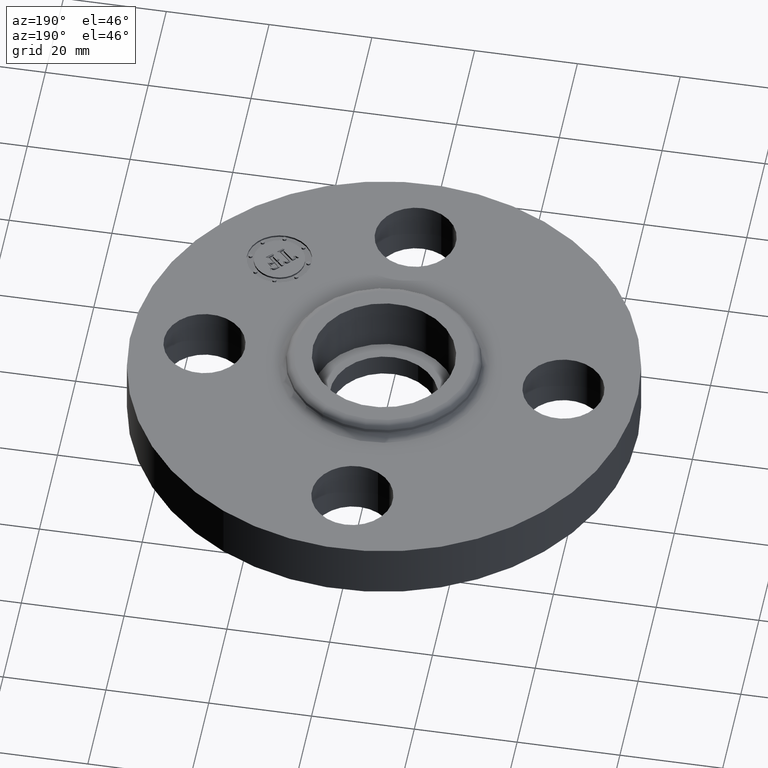
[diagram: clean part render]
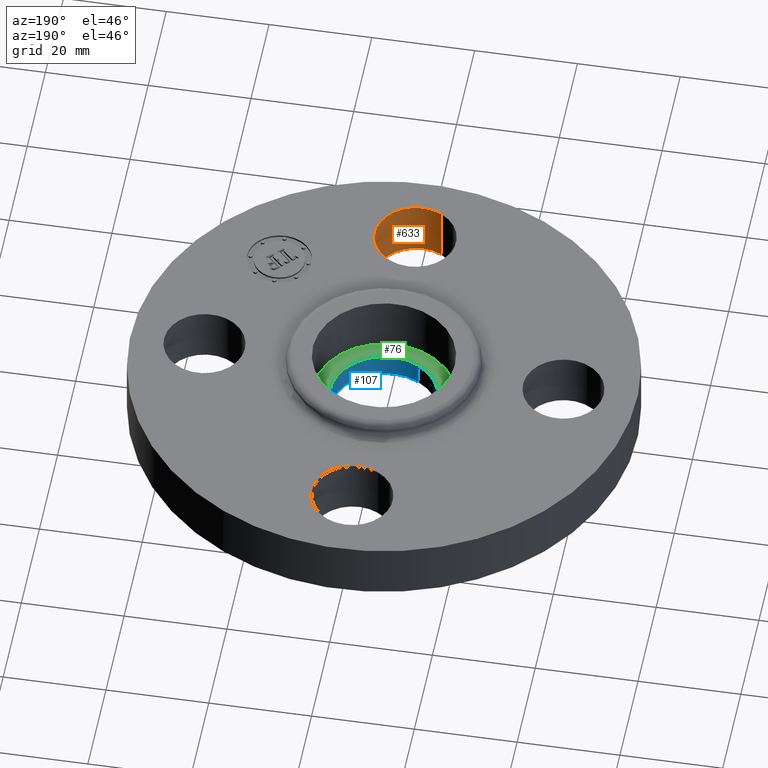
[diagram: same view with three faces highlighted in distinct colors, each labeled with its STEP entity id]
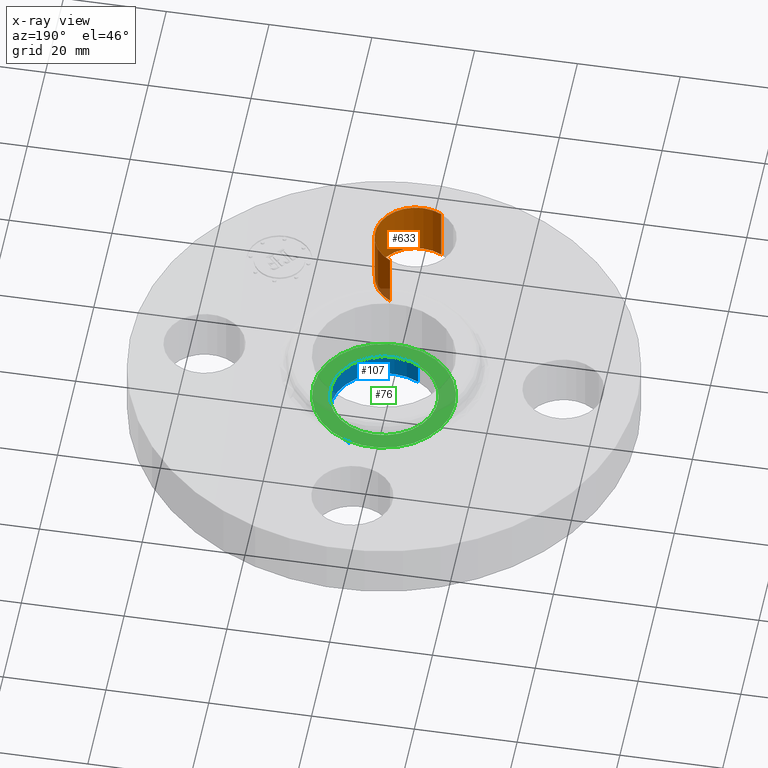
[diagram: x-ray of the same camera — body ghosted, the three highlighted faces saturated]
A machine part, auxiliary view with three faces highlighted in distinct colors.
The next image is the same camera in x-ray (body ghosted, the three faces saturated) — at least one of them is partly hidden behind the body in this view.
Their STEP definitions:

[orange] entity #633 — the highlighted cylindrical surface (partial cylindrical patch) has radius 7.874 mm, axis along (0, -0, -1).
#238=AXIS2_PLACEMENT_3D('Circle Axis2P3D',#236,#237,$) ;
#594=AXIS2_PLACEMENT_3D('Cylinder Axis2P3D',#591,#592,#593) ;
#624=AXIS2_PLACEMENT_3D('Circle Axis2P3D',#622,#623,$) ;
#236=CARTESIAN_POINT('Axis2P3D Location',(-6.99353086378E-017,-1.37500000001,0.)) ;
#240=CARTESIAN_POINT('Vertex',(0.148621916968,-1.10294940582,0.)) ;
#242=CARTESIAN_POINT('Vertex',(-0.148621916968,-1.64705059419,0.)) ;
#591=CARTESIAN_POINT('Axis2P3D Location',(-1.9554676711E-016,-1.37500000001,0.436062992128)) ;
#596=CARTESIAN_POINT('Line Origine',(-0.148621916968,-1.64705059419,0.220000000001)) ;
#600=CARTESIAN_POINT('Vertex',(-0.148621916968,-1.64705059419,0.440000000002)) ;
#603=CARTESIAN_POINT('Line Origine',(0.148621916968,-1.10294940582,0.220000000001)) ;
#607=CARTESIAN_POINT('Vertex',(0.148621916968,-1.10294940582,0.440000000002)) ;
#622=CARTESIAN_POINT('Axis2P3D Location',(-1.9554676711E-016,-1.37500000001,0.440000000002)) ;
#237=DIRECTION('Axis2P3D Direction',(0.,0.,-0.0393700787402)) ;
#592=DIRECTION('Axis2P3D Direction',(0.,-0.,-0.0393700787402)) ;
#593=DIRECTION('Axis2P3D XDirection',(0.0188750212049,0.0345504945626,-0.)) ;
#597=DIRECTION('Vector Direction',(0.,0.,-0.0393700787402)) ;
#604=DIRECTION('Vector Direction',(0.,0.,-0.0393700787402)) ;
#623=DIRECTION('Axis2P3D Direction',(0.,-0.,-0.0393700787402)) ;
#598=VECTOR('Line Direction',#597,0.0393700787402) ;
#605=VECTOR('Line Direction',#604,0.0393700787402) ;
#628=ORIENTED_EDGE('',*,*,#609,.F.) ;
#629=ORIENTED_EDGE('',*,*,#244,.T.) ;
#630=ORIENTED_EDGE('',*,*,#602,.T.) ;
#631=ORIENTED_EDGE('',*,*,#626,.F.) ;
#633=ADVANCED_FACE('PartBody',(#632),#595,.F.) ;
#239=CIRCLE('generated circle',#238,0.310000000001) ;
#625=CIRCLE('generated circle',#624,0.310000000001) ;
#595=CYLINDRICAL_SURFACE('generated cylinder',#594,0.310000000001) ;
#244=EDGE_CURVE('',#241,#243,#239,.T.) ;
#602=EDGE_CURVE('',#243,#601,#599,.F.) ;
#609=EDGE_CURVE('',#241,#608,#606,.F.) ;
#626=EDGE_CURVE('',#608,#601,#625,.T.) ;
#627=EDGE_LOOP('',(#628,#629,#630,#631)) ;
#632=FACE_OUTER_BOUND('',#627,.T.) ;
#599=LINE('Line',#596,#598) ;
#606=LINE('Line',#603,#605) ;
#241=VERTEX_POINT('',#240) ;
#243=VERTEX_POINT('',#242) ;
#601=VERTEX_POINT('',#600) ;
#608=VERTEX_POINT('',#607) ;

[blue] entity #107 — the highlighted cylindrical surface (partial cylindrical patch) has radius 10.4648 mm, axis along (0, 0, -1).
#69=AXIS2_PLACEMENT_3D('Circle Axis2P3D',#67,#68,$) ;
#80=AXIS2_PLACEMENT_3D('Cylinder Axis2P3D',#77,#78,#79) ;
#91=AXIS2_PLACEMENT_3D('Circle Axis2P3D',#89,#90,$) ;
#62=CARTESIAN_POINT('Vertex',(-0.197523321906,-0.3615640155,0.12)) ;
#64=CARTESIAN_POINT('Vertex',(0.197523321906,0.3615640155,0.12)) ;
#67=CARTESIAN_POINT('Axis2P3D Location',(1.04902962957E-016,-1.74838271595E-017,0.12)) ;
#77=CARTESIAN_POINT('Axis2P3D Location',(0.,0.,0.248750000001)) ;
#82=CARTESIAN_POINT('Line Origine',(0.197523321906,0.3615640155,0.0287500000001)) ;
#86=CARTESIAN_POINT('Vertex',(0.197523321906,0.3615640155,-0.0625000000003)) ;
#89=CARTESIAN_POINT('Axis2P3D Location',(0.,0.,-0.0625000000003)) ;
#93=CARTESIAN_POINT('Vertex',(-0.197523321906,-0.3615640155,-0.0625000000003)) ;
#96=CARTESIAN_POINT('Line Origine',(-0.197523321906,-0.3615640155,0.0287500000001)) ;
#68=DIRECTION('Axis2P3D Direction',(0.,0.,-0.0393700787402)) ;
#78=DIRECTION('Axis2P3D Direction',(0.,0.,-0.0393700787402)) ;
#79=DIRECTION('Axis2P3D XDirection',(-0.0188750212049,-0.0345504945626,0.)) ;
#83=DIRECTION('Vector Direction',(0.,0.,-0.0393700787402)) ;
#90=DIRECTION('Axis2P3D Direction',(0.,0.,-0.0393700787402)) ;
#97=DIRECTION('Vector Direction',(0.,0.,-0.0393700787402)) ;
#84=VECTOR('Line Direction',#83,0.0393700787402) ;
#98=VECTOR('Line Direction',#97,0.0393700787402) ;
#102=ORIENTED_EDGE('',*,*,#88,.T.) ;
#103=ORIENTED_EDGE('',*,*,#95,.T.) ;
#104=ORIENTED_EDGE('',*,*,#100,.F.) ;
#105=ORIENTED_EDGE('',*,*,#71,.F.) ;
#107=ADVANCED_FACE('PartBody',(#106),#81,.F.) ;
#70=CIRCLE('generated circle',#69,0.412000000002) ;
#92=CIRCLE('generated circle',#91,0.412000000002) ;
#81=CYLINDRICAL_SURFACE('generated cylinder',#80,0.412000000002) ;
#71=EDGE_CURVE('',#65,#63,#70,.T.) ;
#88=EDGE_CURVE('',#65,#87,#85,.T.) ;
#95=EDGE_CURVE('',#87,#94,#92,.T.) ;
#100=EDGE_CURVE('',#63,#94,#99,.T.) ;
#101=EDGE_LOOP('',(#102,#103,#104,#105)) ;
#106=FACE_OUTER_BOUND('',#101,.T.) ;
#85=LINE('Line',#82,#84) ;
#99=LINE('Line',#96,#98) ;
#63=VERTEX_POINT('',#62) ;
#65=VERTEX_POINT('',#64) ;
#87=VERTEX_POINT('',#86) ;
#94=VERTEX_POINT('',#93) ;

[green] entity #76 — the highlighted planar face has unit normal (0, 0, -1).
#38=AXIS2_PLACEMENT_3D('Plane Axis2P3D',#35,#36,#37) ;
#42=AXIS2_PLACEMENT_3D('Circle Axis2P3D',#40,#41,$) ;
#51=AXIS2_PLACEMENT_3D('Circle Axis2P3D',#49,#50,$) ;
#60=AXIS2_PLACEMENT_3D('Circle Axis2P3D',#58,#59,$) ;
#69=AXIS2_PLACEMENT_3D('Circle Axis2P3D',#67,#68,$) ;
#35=CARTESIAN_POINT('Axis2P3D Location',(1.39870617276E-016,1.04902962957E-016,0.12)) ;
#40=CARTESIAN_POINT('Axis2P3D Location',(1.39870617276E-016,1.04902962957E-016,0.12)) ;
#44=CARTESIAN_POINT('Vertex',(-0.478282496232,0.26128691854,0.12)) ;
#46=CARTESIAN_POINT('Vertex',(0.478282496232,-0.26128691854,0.12)) ;
#49=CARTESIAN_POINT('Axis2P3D Location',(1.39870617276E-016,1.04902962957E-016,0.12)) ;
#58=CARTESIAN_POINT('Axis2P3D Location',(-3.49676543189E-017,1.74838271595E-017,0.12)) ;
#62=CARTESIAN_POINT('Vertex',(-0.197523321906,-0.3615640155,0.12)) ;
#64=CARTESIAN_POINT('Vertex',(0.197523321906,0.3615640155,0.12)) ;
#67=CARTESIAN_POINT('Axis2P3D Location',(1.04902962957E-016,-1.74838271595E-017,0.12)) ;
#36=DIRECTION('Axis2P3D Direction',(0.,0.,-0.0393700787402)) ;
#37=DIRECTION('Axis2P3D XDirection',(0.0393700787402,0.,0.)) ;
#41=DIRECTION('Axis2P3D Direction',(0.,0.,-0.0393700787402)) ;
#50=DIRECTION('Axis2P3D Direction',(0.,0.,-0.0393700787402)) ;
#59=DIRECTION('Axis2P3D Direction',(0.,0.,-0.0393700787402)) ;
#68=DIRECTION('Axis2P3D Direction',(0.,0.,-0.0393700787402)) ;
#55=ORIENTED_EDGE('',*,*,#48,.F.) ;
#56=ORIENTED_EDGE('',*,*,#53,.F.) ;
#73=ORIENTED_EDGE('',*,*,#66,.T.) ;
#74=ORIENTED_EDGE('',*,*,#71,.T.) ;
#75=FACE_BOUND('',#72,.T.) ;
#76=ADVANCED_FACE('PartBody',(#57,#75),#39,.F.) ;
#43=CIRCLE('generated circle',#42,0.545000000002) ;
#52=CIRCLE('generated circle',#51,0.545000000002) ;
#61=CIRCLE('generated circle',#60,0.412000000002) ;
#70=CIRCLE('generated circle',#69,0.412000000002) ;
#48=EDGE_CURVE('',#45,#47,#43,.T.) ;
#53=EDGE_CURVE('',#47,#45,#52,.T.) ;
#66=EDGE_CURVE('',#63,#65,#61,.T.) ;
#71=EDGE_CURVE('',#65,#63,#70,.T.) ;
#54=EDGE_LOOP('',(#55,#56)) ;
#72=EDGE_LOOP('',(#73,#74)) ;
#57=FACE_OUTER_BOUND('',#54,.T.) ;
#39=PLANE('',#38) ;
#45=VERTEX_POINT('',#44) ;
#47=VERTEX_POINT('',#46) ;
#63=VERTEX_POINT('',#62) ;
#65=VERTEX_POINT('',#64) ;